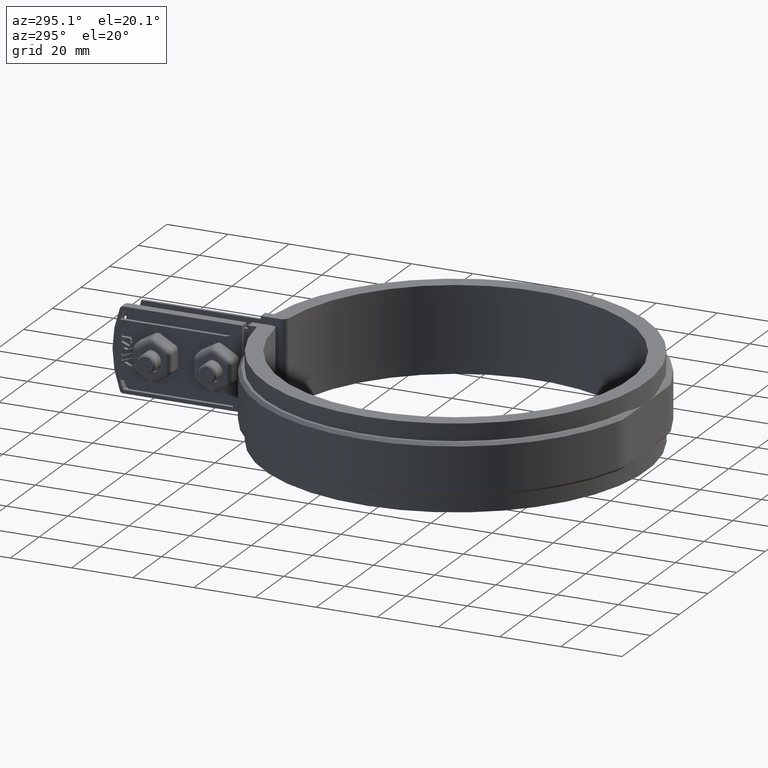
[diagram: clean part render]
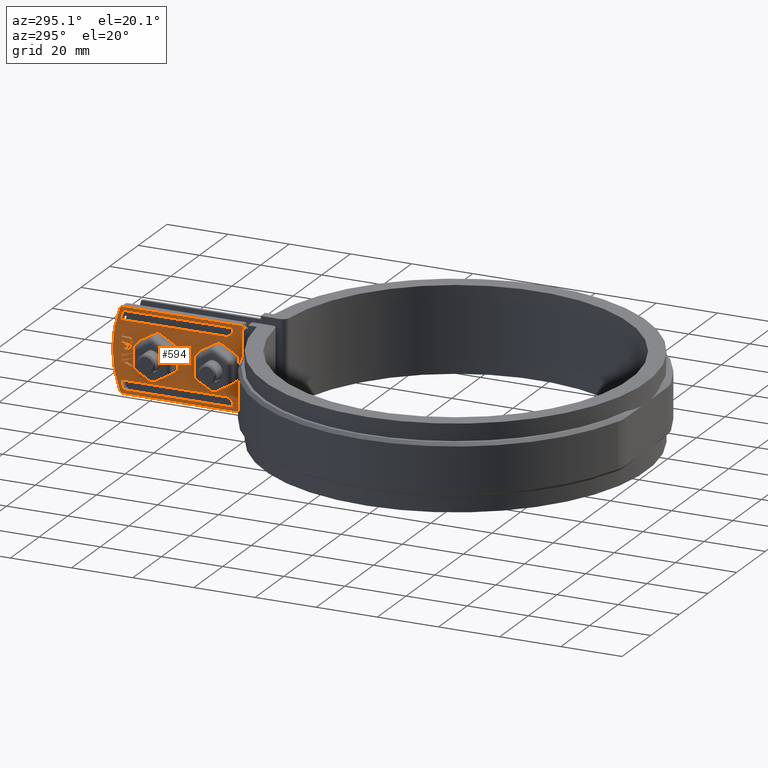
[diagram: same view with one face highlighted and labeled with its STEP entity id]
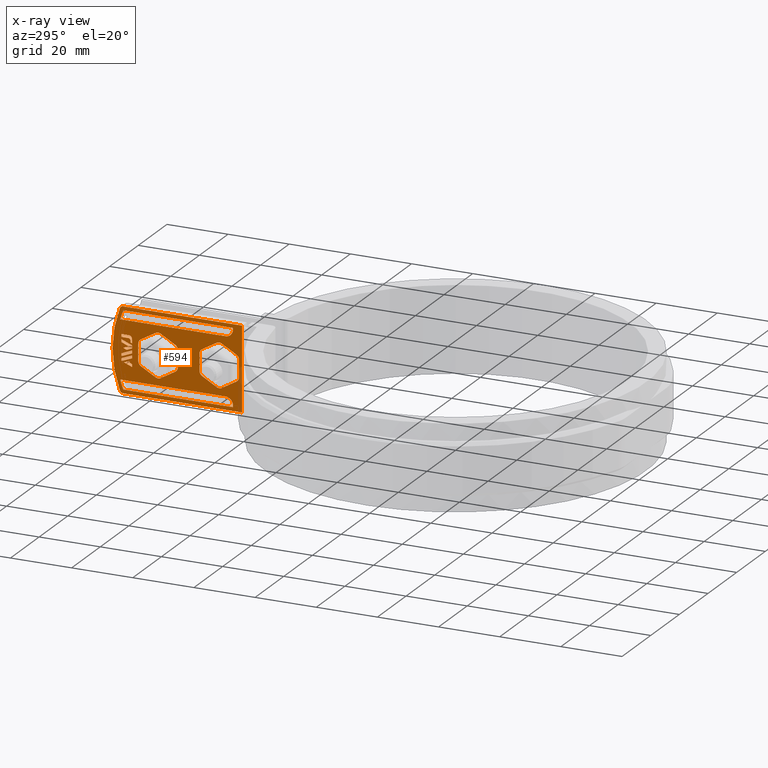
[diagram: x-ray of the same camera — body ghosted, the highlighted face saturated]
A machine part, auxiliary view. The second image highlights one B-rep face of the part: STEP entity #594.
The next image is the same camera in x-ray: the body ghosted, the highlighted face saturated — about 3% of this face is hidden behind the body in this view.
In plain terms, the highlighted planar face has unit normal (-1, 0, -0).
Its self-contained STEP definition (entity closure, byte-faithful):
#594 = ADVANCED_FACE( '', ( #1102, #1103, #1104, #1105, #1106, #1107, #1108, #1109, #1110, #1111 ), #1112, .T. );
#1102 = FACE_OUTER_BOUND( '', #2421, .T. );
#1103 = FACE_BOUND( '', #2422, .T. );
#1104 = FACE_BOUND( '', #2423, .T. );
#1105 = FACE_BOUND( '', #2424, .T. );
#1106 = FACE_BOUND( '', #2425, .T. );
#1107 = FACE_BOUND( '', #2426, .T. );
#1108 = FACE_BOUND( '', #2427, .T. );
#1109 = FACE_BOUND( '', #2428, .T. );
#1110 = FACE_BOUND( '', #2429, .T. );
#1111 = FACE_BOUND( '', #2430, .T. );
#1112 = PLANE( '', #2431 );
#2421 = EDGE_LOOP( '', ( #5282, #5283, #5284, #5285, #5286, #5287 ) );
#2422 = EDGE_LOOP( '', ( #5288, #5289, #5290, #5291, #5292 ) );
#2423 = EDGE_LOOP( '', ( #5293, #5294, #5295, #5296 ) );
#2424 = EDGE_LOOP( '', ( #5297, #5298, #5299, #5300, #5301 ) );
#2425 = EDGE_LOOP( '', ( #5302, #5303, #5304, #5305, #5306, #5307, #5308, #5309, #5310, #5311, #5312, #5313 ) );
#2426 = EDGE_LOOP( '', ( #5314, #5315, #5316, #5317, #5318, #5319, #5320, #5321, #5322, #5323, #5324, #5325 ) );
#2427 = EDGE_LOOP( '', ( #5326, #5327, #5328, #5329, #5330 ) );
#2428 = EDGE_LOOP( '', ( #5331, #5332, #5333, #5334, #5335, #5336, #5337, #5338, #5339, #5340, #5341, #5342, #5343, #5344, #5345, #5346, #5347, #5348, #5349, #5350, #5351, #5352, #5353, #5354, #5355, #5356, #5357, #5358, #5359, #5360, #5361, #5362, #5363, #5364, #5365, #5366, #5367, #5368, #5369, #5370 ) );
#2429 = EDGE_LOOP( '', ( #5371, #5372, #5373, #5374, #5375, #5376, #5377 ) );
#2430 = EDGE_LOOP( '', ( #5378, #5379, #5380, #5381 ) );
#2431 = AXIS2_PLACEMENT_3D( '', #5382, #5383, #5384 );
#5282 = ORIENTED_EDGE( '', *, *, #7413, .T. );
#5283 = ORIENTED_EDGE( '', *, *, #7414, .T. );
#5284 = ORIENTED_EDGE( '', *, *, #7415, .T. );
#5285 = ORIENTED_EDGE( '', *, *, #7416, .T. );
#5286 = ORIENTED_EDGE( '', *, *, #7417, .T. );
#5287 = ORIENTED_EDGE( '', *, *, #7418, .T. );
#5288 = ORIENTED_EDGE( '', *, *, #7419, .T. );
#5289 = ORIENTED_EDGE( '', *, *, #7420, .T. );
#5290 = ORIENTED_EDGE( '', *, *, #7421, .T. );
#5291 = ORIENTED_EDGE( '', *, *, #7422, .T. );
#5292 = ORIENTED_EDGE( '', *, *, #7423, .T. );
#5293 = ORIENTED_EDGE( '', *, *, #7424, .T. );
#5294 = ORIENTED_EDGE( '', *, *, #7425, .T. );
#5295 = ORIENTED_EDGE( '', *, *, #7426, .T. );
#5296 = ORIENTED_EDGE( '', *, *, #7427, .T. );
#5297 = ORIENTED_EDGE( '', *, *, #7428, .T. );
#5298 = ORIENTED_EDGE( '', *, *, #7429, .F. );
#5299 = ORIENTED_EDGE( '', *, *, #7430, .T. );
#5300 = ORIENTED_EDGE( '', *, *, #7431, .T. );
#5301 = ORIENTED_EDGE( '', *, *, #7432, .T. );
#5302 = ORIENTED_EDGE( '', *, *, #7433, .F. );
#5303 = ORIENTED_EDGE( '', *, *, #7434, .F. );
#5304 = ORIENTED_EDGE( '', *, *, #7435, .F. );
#5305 = ORIENTED_EDGE( '', *, *, #7436, .F. );
#5306 = ORIENTED_EDGE( '', *, *, #7437, .F. );
#5307 = ORIENTED_EDGE( '', *, *, #7438, .F. );
#5308 = ORIENTED_EDGE( '', *, *, #7439, .F. );
#5309 = ORIENTED_EDGE( '', *, *, #7440, .F. );
#5310 = ORIENTED_EDGE( '', *, *, #7441, .F. );
#5311 = ORIENTED_EDGE( '', *, *, #7442, .F. );
#5312 = ORIENTED_EDGE( '', *, *, #7443, .F. );
#5313 = ORIENTED_EDGE( '', *, *, #7444, .F. );
#5314 = ORIENTED_EDGE( '', *, *, #7445, .F. );
#5315 = ORIENTED_EDGE( '', *, *, #7446, .F. );
#5316 = ORIENTED_EDGE( '', *, *, #7447, .F. );
#5317 = ORIENTED_EDGE( '', *, *, #7448, .F. );
#5318 = ORIENTED_EDGE( '', *, *, #7449, .F. );
#5319 = ORIENTED_EDGE( '', *, *, #7450, .F. );
#5320 = ORIENTED_EDGE( '', *, *, #7451, .F. );
#5321 = ORIENTED_EDGE( '', *, *, #7452, .F. );
#5322 = ORIENTED_EDGE( '', *, *, #7453, .F. );
#5323 = ORIENTED_EDGE( '', *, *, #7454, .F. );
#5324 = ORIENTED_EDGE( '', *, *, #7455, .F. );
#5325 = ORIENTED_EDGE( '', *, *, #7456, .F. );
#5326 = ORIENTED_EDGE( '', *, *, #7457, .T. );
#5327 = ORIENTED_EDGE( '', *, *, #7458, .T. );
#5328 = ORIENTED_EDGE( '', *, *, #7459, .T. );
#5329 = ORIENTED_EDGE( '', *, *, #7460, .T. );
#5330 = ORIENTED_EDGE( '', *, *, #7461, .F. );
#5331 = ORIENTED_EDGE( '', *, *, #7462, .T. );
#5332 = ORIENTED_EDGE( '', *, *, #7463, .T. );
#5333 = ORIENTED_EDGE( '', *, *, #7464, .T. );
#5334 = ORIENTED_EDGE( '', *, *, #7465, .T. );
#5335 = ORIENTED_EDGE( '', *, *, #7466, .T. );
#5336 = ORIENTED_EDGE( '', *, *, #7467, .T. );
#5337 = ORIENTED_EDGE( '', *, *, #7468, .T. );
#5338 = ORIENTED_EDGE( '', *, *, #7469, .T. );
#5339 = ORIENTED_EDGE( '', *, *, #7470, .T. );
#5340 = ORIENTED_EDGE( '', *, *, #7471, .T. );
#5341 = ORIENTED_EDGE( '', *, *, #7472, .T. );
#5342 = ORIENTED_EDGE( '', *, *, #7473, .T. );
#5343 = ORIENTED_EDGE( '', *, *, #7474, .T. );
#5344 = ORIENTED_EDGE( '', *, *, #7475, .T. );
#5345 = ORIENTED_EDGE( '', *, *, #7476, .T. );
#5346 = ORIENTED_EDGE( '', *, *, #7477, .T. );
#5347 = ORIENTED_EDGE( '', *, *, #7478, .T. );
#5348 = ORIENTED_EDGE( '', *, *, #7479, .T. );
#5349 = ORIENTED_EDGE( '', *, *, #7480, .T. );
#5350 = ORIENTED_EDGE( '', *, *, #7481, .T. );
#5351 = ORIENTED_EDGE( '', *, *, #7482, .T. );
#5352 = ORIENTED_EDGE( '', *, *, #7483, .T. );
#5353 = ORIENTED_EDGE( '', *, *, #7484, .T. );
#5354 = ORIENTED_EDGE( '', *, *, #7485, .T. );
#5355 = ORIENTED_EDGE( '', *, *, #7486, .T. );
#5356 = ORIENTED_EDGE( '', *, *, #7487, .T. );
#5357 = ORIENTED_EDGE( '', *, *, #7488, .T. );
#5358 = ORIENTED_EDGE( '', *, *, #7489, .T. );
#5359 = ORIENTED_EDGE( '', *, *, #7490, .T. );
#5360 = ORIENTED_EDGE( '', *, *, #7491, .T. );
#5361 = ORIENTED_EDGE( '', *, *, #7492, .T. );
#5362 = ORIENTED_EDGE( '', *, *, #7493, .T. );
#5363 = ORIENTED_EDGE( '', *, *, #7494, .T. );
#5364 = ORIENTED_EDGE( '', *, *, #7495, .T. );
#5365 = ORIENTED_EDGE( '', *, *, #7496, .T. );
#5366 = ORIENTED_EDGE( '', *, *, #7497, .T. );
#5367 = ORIENTED_EDGE( '', *, *, #7498, .T. );
#5368 = ORIENTED_EDGE( '', *, *, #7499, .T. );
#5369 = ORIENTED_EDGE( '', *, *, #7500, .T. );
#5370 = ORIENTED_EDGE( '', *, *, #7501, .T. );
#5371 = ORIENTED_EDGE( '', *, *, #7502, .T. );
#5372 = ORIENTED_EDGE( '', *, *, #7503, .T. );
#5373 = ORIENTED_EDGE( '', *, *, #7504, .T. );
#5374 = ORIENTED_EDGE( '', *, *, #7505, .T. );
#5375 = ORIENTED_EDGE( '', *, *, #7506, .T. );
#5376 = ORIENTED_EDGE( '', *, *, #7507, .T. );
#5377 = ORIENTED_EDGE( '', *, *, #7508, .T. );
#5378 = ORIENTED_EDGE( '', *, *, #7509, .T. );
#5379 = ORIENTED_EDGE( '', *, *, #7510, .T. );
#5380 = ORIENTED_EDGE( '', *, *, #7511, .T. );
#5381 = ORIENTED_EDGE( '', *, *, #7512, .T. );
#5382 = CARTESIAN_POINT( '', ( -6.20000000000002, 72.9013037155077, 1.23338839141951E-012 ) );
#5383 = DIRECTION( '', ( -1.00000000000000, 7.00331983426594E-017, -2.99848040556711E-018 ) );
#5384 = DIRECTION( '', ( -2.99848040556711E-018, 0.000000000000000, 1.00000000000000 ) );
#7413 = EDGE_CURVE( '', #8613, #8614, #8615, .T. );
#7414 = EDGE_CURVE( '', #8614, #8616, #8617, .T. );
#7415 = EDGE_CURVE( '', #8616, #8618, #8619, .T. );
#7416 = EDGE_CURVE( '', #8618, #8620, #8621, .T. );
#7417 = EDGE_CURVE( '', #8620, #8622, #8623, .T. );
#7418 = EDGE_CURVE( '', #8622, #8613, #8624, .T. );
#7419 = EDGE_CURVE( '', #8625, #8626, #8627, .T. );
#7420 = EDGE_CURVE( '', #8626, #8628, #8629, .T. );
#7421 = EDGE_CURVE( '', #8628, #8630, #8631, .T. );
#7422 = EDGE_CURVE( '', #8630, #8632, #8633, .T. );
#7423 = EDGE_CURVE( '', #8632, #8625, #8634, .T. );
#7424 = EDGE_CURVE( '', #8635, #8636, #8637, .T. );
#7425 = EDGE_CURVE( '', #8636, #8638, #8639, .T. );
#7426 = EDGE_CURVE( '', #8638, #8640, #8641, .T. );
#7427 = EDGE_CURVE( '', #8640, #8635, #8642, .T. );
#7428 = EDGE_CURVE( '', #8643, #8644, #8645, .T. );
#7429 = EDGE_CURVE( '', #8646, #8644, #8647, .T. );
#7430 = EDGE_CURVE( '', #8646, #8648, #8649, .T. );
#7431 = EDGE_CURVE( '', #8648, #8650, #8651, .T. );
#7432 = EDGE_CURVE( '', #8650, #8643, #8652, .T. );
#7433 = EDGE_CURVE( '', #8653, #8654, #8655, .T. );
#7434 = EDGE_CURVE( '', #8656, #8653, #8657, .T. );
#7435 = EDGE_CURVE( '', #8658, #8656, #8659, .T. );
#7436 = EDGE_CURVE( '', #8660, #8658, #8661, .T. );
#7437 = EDGE_CURVE( '', #8662, #8660, #8663, .T. );
#7438 = EDGE_CURVE( '', #8664, #8662, #8665, .T. );
#7439 = EDGE_CURVE( '', #8666, #8664, #8667, .T. );
#7440 = EDGE_CURVE( '', #8668, #8666, #8669, .T. );
#7441 = EDGE_CURVE( '', #8670, #8668, #8671, .T. );
#7442 = EDGE_CURVE( '', #8672, #8670, #8673, .T. );
#7443 = EDGE_CURVE( '', #8674, #8672, #8675, .T. );
#7444 = EDGE_CURVE( '', #8654, #8674, #8676, .T. );
#7445 = EDGE_CURVE( '', #8677, #8678, #8679, .T. );
#7446 = EDGE_CURVE( '', #8680, #8677, #8681, .T. );
#7447 = EDGE_CURVE( '', #8682, #8680, #8683, .T. );
#7448 = EDGE_CURVE( '', #8684, #8682, #8685, .T. );
#7449 = EDGE_CURVE( '', #8686, #8684, #8687, .T. );
#7450 = EDGE_CURVE( '', #8688, #8686, #8689, .T. );
#7451 = EDGE_CURVE( '', #8690, #8688, #8691, .T. );
#7452 = EDGE_CURVE( '', #8692, #8690, #8693, .T. );
#7453 = EDGE_CURVE( '', #8694, #8692, #8695, .T. );
#7454 = EDGE_CURVE( '', #8696, #8694, #8697, .T. );
#7455 = EDGE_CURVE( '', #8698, #8696, #8699, .T. );
#7456 = EDGE_CURVE( '', #8678, #8698, #8700, .T. );
#7457 = EDGE_CURVE( '', #8701, #8702, #8703, .T. );
#7458 = EDGE_CURVE( '', #8702, #8704, #8705, .T. );
#7459 = EDGE_CURVE( '', #8704, #8706, #8707, .T. );
#7460 = EDGE_CURVE( '', #8706, #8708, #8709, .T. );
#7461 = EDGE_CURVE( '', #8701, #8708, #8710, .T. );
#7462 = EDGE_CURVE( '', #8711, #8712, #8713, .T. );
#7463 = EDGE_CURVE( '', #8712, #8714, #8715, .T. );
#7464 = EDGE_CURVE( '', #8714, #8716, #8717, .T. );
#7465 = EDGE_CURVE( '', #8716, #8718, #8719, .T. );
#7466 = EDGE_CURVE( '', #8718, #8720, #8721, .T. );
#7467 = EDGE_CURVE( '', #8720, #8722, #8723, .T. );
#7468 = EDGE_CURVE( '', #8722, #8724, #8725, .T. );
#7469 = EDGE_CURVE( '', #8724, #8726, #8727, .T. );
#7470 = EDGE_CURVE( '', #8726, #8728, #8729, .T. );
#7471 = EDGE_CURVE( '', #8728, #8730, #8731, .T. );
#7472 = EDGE_CURVE( '', #8730, #8732, #8733, .T. );
#7473 = EDGE_CURVE( '', #8732, #8734, #8735, .T. );
#7474 = EDGE_CURVE( '', #8734, #8736, #8737, .T. );
#7475 = EDGE_CURVE( '', #8736, #8738, #8739, .T. );
#7476 = EDGE_CURVE( '', #8738, #8740, #8741, .T. );
#7477 = EDGE_CURVE( '', #8740, #8742, #8743, .T. );
#7478 = EDGE_CURVE( '', #8742, #8744, #8745, .T. );
#7479 = EDGE_CURVE( '', #8744, #8746, #8747, .T. );
#7480 = EDGE_CURVE( '', #8746, #8748, #8749, .T. );
#7481 = EDGE_CURVE( '', #8748, #8750, #8751, .T. );
#7482 = EDGE_CURVE( '', #8750, #8752, #8753, .T. );
#7483 = EDGE_CURVE( '', #8752, #8754, #8755, .T. );
#7484 = EDGE_CURVE( '', #8754, #8756, #8757, .T. );
#7485 = EDGE_CURVE( '', #8756, #8758, #8759, .T. );
#7486 = EDGE_CURVE( '', #8758, #8760, #8761, .T. );
#7487 = EDGE_CURVE( '', #8760, #8762, #8763, .T. );
#7488 = EDGE_CURVE( '', #8762, #8764, #8765, .T. );
#7489 = EDGE_CURVE( '', #8764, #8766, #8767, .T. );
#7490 = EDGE_CURVE( '', #8766, #8768, #8769, .T. );
#7491 = EDGE_CURVE( '', #8768, #8770, #8771, .T. );
#7492 = EDGE_CURVE( '', #8770, #8772, #8773, .T. );
#7493 = EDGE_CURVE( '', #8772, #8774, #8775, .T. );
#7494 = EDGE_CURVE( '', #8774, #8776, #8777, .T. );
#7495 = EDGE_CURVE( '', #8776, #8778, #8779, .T. );
#7496 = EDGE_CURVE( '', #8778, #8780, #8781, .T. );
#7497 = EDGE_CURVE( '', #8780, #8782, #8783, .T. );
#7498 = EDGE_CURVE( '', #8782, #8784, #8785, .T. );
#7499 = EDGE_CURVE( '', #8784, #8786, #8787, .T. );
#7500 = EDGE_CURVE( '', #8786, #8788, #8789, .T. );
#7501 = EDGE_CURVE( '', #8788, #8711, #8790, .T. );
#7502 = EDGE_CURVE( '', #8791, #8792, #8793, .T. );
#7503 = EDGE_CURVE( '', #8792, #8794, #8795, .T. );
#7504 = EDGE_CURVE( '', #8794, #8796, #8797, .T. );
#7505 = EDGE_CURVE( '', #8796, #8798, #8799, .T. );
#7506 = EDGE_CURVE( '', #8798, #8800, #8801, .T. );
#7507 = EDGE_CURVE( '', #8800, #8802, #8803, .T. );
#7508 = EDGE_CURVE( '', #8802, #8791, #8804, .T. );
#7509 = EDGE_CURVE( '', #8805, #8806, #8807, .T. );
#7510 = EDGE_CURVE( '', #8806, #8808, #8809, .T. );
#7511 = EDGE_CURVE( '', #8808, #8810, #8811, .T. );
#7512 = EDGE_CURVE( '', #8810, #8805, #8812, .T. );
#8613 = VERTEX_POINT( '', #12464 );
#8614 = VERTEX_POINT( '', #12465 );
#8615 = CIRCLE( '', #12466, 36.4000000000000 );
#8616 = VERTEX_POINT( '', #12467 );
#8617 = CIRCLE( '', #12468, 1.00000000000000 );
#8618 = VERTEX_POINT( '', #12469 );
#8619 = LINE( '', #12470, #12471 );
#8620 = VERTEX_POINT( '', #12472 );
#8621 = LINE( '', #12473, #12474 );
#8622 = VERTEX_POINT( '', #12475 );
#8623 = LINE( '', #12476, #12477 );
#8624 = CIRCLE( '', #12478, 1.00000000000000 );
#8625 = VERTEX_POINT( '', #12479 );
#8626 = VERTEX_POINT( '', #12480 );
#8627 = LINE( '', #12481, #12482 );
#8628 = VERTEX_POINT( '', #12483 );
#8629 = LINE( '', #12484, #12485 );
#8630 = VERTEX_POINT( '', #12486 );
#8631 = LINE( '', #12487, #12488 );
#8632 = VERTEX_POINT( '', #12489 );
#8633 = LINE( '', #12490, #12491 );
#8634 = LINE( '', #12492, #12493 );
#8635 = VERTEX_POINT( '', #12494 );
#8636 = VERTEX_POINT( '', #12495 );
#8637 = LINE( '', #12496, #12497 );
#8638 = VERTEX_POINT( '', #12498 );
#8639 = LINE( '', #12499, #12500 );
#8640 = VERTEX_POINT( '', #12501 );
#8641 = LINE( '', #12502, #12503 );
#8642 = LINE( '', #12504, #12505 );
#8643 = VERTEX_POINT( '', #12506 );
#8644 = VERTEX_POINT( '', #12507 );
#8645 = CIRCLE( '', #12508, 35.2000000000000 );
#8646 = VERTEX_POINT( '', #12509 );
#8647 = LINE( '', #12510, #12511 );
#8648 = VERTEX_POINT( '', #12512 );
#8649 = LINE( '', #12513, #12514 );
#8650 = VERTEX_POINT( '', #12515 );
#8651 = CIRCLE( '', #12516, 2.50000000000000 );
#8652 = LINE( '', #12517, #12518 );
#8653 = VERTEX_POINT( '', #12519 );
#8654 = VERTEX_POINT( '', #12520 );
#8655 = LINE( '', #12521, #12522 );
#8656 = VERTEX_POINT( '', #12523 );
#8657 = CIRCLE( '', #12524, 1.77252045227181 );
#8658 = VERTEX_POINT( '', #12525 );
#8659 = LINE( '', #12526, #12527 );
#8660 = VERTEX_POINT( '', #12528 );
#8661 = CIRCLE( '', #12529, 1.77252045227181 );
#8662 = VERTEX_POINT( '', #12530 );
#8663 = LINE( '', #12531, #12532 );
#8664 = VERTEX_POINT( '', #12533 );
#8665 = CIRCLE( '', #12534, 1.77252045227182 );
#8666 = VERTEX_POINT( '', #12535 );
#8667 = LINE( '', #12536, #12537 );
#8668 = VERTEX_POINT( '', #12538 );
#8669 = CIRCLE( '', #12539, 1.77252045227182 );
#8670 = VERTEX_POINT( '', #12540 );
#8671 = LINE( '', #12541, #12542 );
#8672 = VERTEX_POINT( '', #12543 );
#8673 = CIRCLE( '', #12544, 1.77252045227181 );
#8674 = VERTEX_POINT( '', #12545 );
#8675 = LINE( '', #12546, #12547 );
#8676 = CIRCLE( '', #12548, 1.77252045227182 );
#8677 = VERTEX_POINT( '', #12549 );
#8678 = VERTEX_POINT( '', #12550 );
#8679 = LINE( '', #12551, #12552 );
#8680 = VERTEX_POINT( '', #12553 );
#8681 = CIRCLE( '', #12554, 1.77252045227181 );
#8682 = VERTEX_POINT( '', #12555 );
#8683 = LINE( '', #12556, #12557 );
#8684 = VERTEX_POINT( '', #12558 );
#8685 = CIRCLE( '', #12559, 1.77252045227181 );
#8686 = VERTEX_POINT( '', #12560 );
#8687 = LINE( '', #12561, #12562 );
#8688 = VERTEX_POINT( '', #12563 );
#8689 = CIRCLE( '', #12564, 1.77252045227181 );
#8690 = VERTEX_POINT( '', #12565 );
#8691 = LINE( '', #12566, #12567 );
#8692 = VERTEX_POINT( '', #12568 );
#8693 = CIRCLE( '', #12569, 1.77252045227182 );
#8694 = VERTEX_POINT( '', #12570 );
#8695 = LINE( '', #12571, #12572 );
#8696 = VERTEX_POINT( '', #12573 );
#8697 = CIRCLE( '', #12574, 1.77252045227181 );
#8698 = VERTEX_POINT( '', #12575 );
#8699 = LINE( '', #12576, #12577 );
#8700 = CIRCLE( '', #12578, 1.77252045227182 );
#8701 = VERTEX_POINT( '', #12579 );
#8702 = VERTEX_POINT( '', #12580 );
#8703 = CIRCLE( '', #12581, 35.2000000000000 );
#8704 = VERTEX_POINT( '', #12582 );
#8705 = LINE( '', #12583, #12584 );
#8706 = VERTEX_POINT( '', #12585 );
#8707 = CIRCLE( '', #12586, 2.50000000000000 );
#8708 = VERTEX_POINT( '', #12587 );
#8709 = LINE( '', #12588, #12589 );
#8710 = LINE( '', #12590, #12591 );
#8711 = VERTEX_POINT( '', #12592 );
#8712 = VERTEX_POINT( '', #12593 );
#8713 = LINE( '', #12594, #12595 );
#8714 = VERTEX_POINT( '', #12596 );
#8715 = LINE( '', #12597, #12598 );
#8716 = VERTEX_POINT( '', #12599 );
#8717 = LINE( '', #12600, #12601 );
#8718 = VERTEX_POINT( '', #12602 );
#8719 = LINE( '', #12603, #12604 );
#8720 = VERTEX_POINT( '', #12605 );
#8721 = LINE( '', #12606, #12607 );
#8722 = VERTEX_POINT( '', #12608 );
#8723 = LINE( '', #12609, #12610 );
#8724 = VERTEX_POINT( '', #12611 );
#8725 = LINE( '', #12612, #12613 );
#8726 = VERTEX_POINT( '', #12614 );
#8727 = LINE( '', #12615, #12616 );
#8728 = VERTEX_POINT( '', #12617 );
#8729 = LINE( '', #12618, #12619 );
#8730 = VERTEX_POINT( '', #12620 );
#8731 = LINE( '', #12621, #12622 );
#8732 = VERTEX_POINT( '', #12623 );
#8733 = LINE( '', #12624, #12625 );
#8734 = VERTEX_POINT( '', #12626 );
#8735 = LINE( '', #12627, #12628 );
#8736 = VERTEX_POINT( '', #12629 );
#8737 = LINE( '', #12630, #12631 );
#8738 = VERTEX_POINT( '', #12632 );
#8739 = LINE( '', #12633, #12634 );
#8740 = VERTEX_POINT( '', #12635 );
#8741 = LINE( '', #12636, #12637 );
#8742 = VERTEX_POINT( '', #12638 );
#8743 = LINE( '', #12639, #12640 );
#8744 = VERTEX_POINT( '', #12641 );
#8745 = LINE( '', #12642, #12643 );
#8746 = VERTEX_POINT( '', #12644 );
#8747 = LINE( '', #12645, #12646 );
#8748 = VERTEX_POINT( '', #12647 );
#8749 = LINE( '', #12648, #12649 );
#8750 = VERTEX_POINT( '', #12650 );
#8751 = LINE( '', #12651, #12652 );
#8752 = VERTEX_POINT( '', #12653 );
#8753 = LINE( '', #12654, #12655 );
#8754 = VERTEX_POINT( '', #12656 );
#8755 = LINE( '', #12657, #12658 );
#8756 = VERTEX_POINT( '', #12659 );
#8757 = LINE( '', #12660, #12661 );
#8758 = VERTEX_POINT( '', #12662 );
#8759 = LINE( '', #12663, #12664 );
#8760 = VERTEX_POINT( '', #12665 );
#8761 = LINE( '', #12666, #12667 );
#8762 = VERTEX_POINT( '', #12668 );
#8763 = LINE( '', #12669, #12670 );
#8764 = VERTEX_POINT( '', #12671 );
#8765 = LINE( '', #12672, #12673 );
#8766 = VERTEX_POINT( '', #12674 );
#8767 = LINE( '', #12675, #12676 );
#8768 = VERTEX_POINT( '', #12677 );
#8769 = LINE( '', #12678, #12679 );
#8770 = VERTEX_POINT( '', #12680 );
#8771 = LINE( '', #12681, #12682 );
#8772 = VERTEX_POINT( '', #12683 );
#8773 = LINE( '', #12684, #12685 );
#8774 = VERTEX_POINT( '', #12686 );
#8775 = LINE( '', #12687, #12688 );
#8776 = VERTEX_POINT( '', #12689 );
#8777 = LINE( '', #12690, #12691 );
#8778 = VERTEX_POINT( '', #12692 );
#8779 = LINE( '', #12693, #12694 );
#8780 = VERTEX_POINT( '', #12695 );
#8781 = LINE( '', #12696, #12697 );
#8782 = VERTEX_POINT( '', #12698 );
#8783 = LINE( '', #12699, #12700 );
#8784 = VERTEX_POINT( '', #12701 );
#8785 = LINE( '', #12702, #12703 );
#8786 = VERTEX_POINT( '', #12704 );
#8787 = LINE( '', #12705, #12706 );
#8788 = VERTEX_POINT( '', #12707 );
#8789 = LINE( '', #12708, #12709 );
#8790 = CIRCLE( '', #12710, 1.16712912069193 );
#8791 = VERTEX_POINT( '', #12711 );
#8792 = VERTEX_POINT( '', #12712 );
#8793 = LINE( '', #12713, #12714 );
#8794 = VERTEX_POINT( '', #12715 );
#8795 = LINE( '', #12716, #12717 );
#8796 = VERTEX_POINT( '', #12718 );
#8797 = LINE( '', #12719, #12720 );
#8798 = VERTEX_POINT( '', #12721 );
#8799 = LINE( '', #12722, #12723 );
#8800 = VERTEX_POINT( '', #12724 );
#8801 = LINE( '', #12725, #12726 );
#8802 = VERTEX_POINT( '', #12727 );
#8803 = LINE( '', #12728, #12729 );
#8804 = LINE( '', #12730, #12731 );
#8805 = VERTEX_POINT( '', #12732 );
#8806 = VERTEX_POINT( '', #12733 );
#8807 = LINE( '', #12734, #12735 );
#8808 = VERTEX_POINT( '', #12736 );
#8809 = LINE( '', #12737, #12738 );
#8810 = VERTEX_POINT( '', #12739 );
#8811 = LINE( '', #12740, #12741 );
#8812 = LINE( '', #12742, #12743 );
#12464 = CARTESIAN_POINT( '', ( -6.20000000000002, 106.878190918308, 13.0587570621481 ) );
#12465 = CARTESIAN_POINT( '', ( -6.20000000000002, 106.878190918308, -13.0587570621457 ) );
#12466 = AXIS2_PLACEMENT_3D( '', #14324, #14325, #14326 );
#12467 = CARTESIAN_POINT( '', ( -6.20000000000002, 105.944759951198, -13.6999999999988 ) );
#12468 = AXIS2_PLACEMENT_3D( '', #14327, #14328, #14329 );
#12469 = CARTESIAN_POINT( '', ( -6.20000000000002, 66.9013037155077, -13.6999999999988 ) );
#12470 = CARTESIAN_POINT( '', ( -6.20000000000002, 69.9013037155077, -13.6999999999988 ) );
#12471 = VECTOR( '', #14330, 1000.00000000000 );
#12472 = CARTESIAN_POINT( '', ( -6.20000000000002, 66.9013037155077, 13.7000000000012 ) );
#12473 = CARTESIAN_POINT( '', ( -6.20000000000002, 66.9013037155077, -13.6999999999988 ) );
#12474 = VECTOR( '', #14331, 1000.00000000000 );
#12475 = CARTESIAN_POINT( '', ( -6.20000000000002, 105.944759951198, 13.7000000000012 ) );
#12476 = CARTESIAN_POINT( '', ( -6.20000000000002, 66.9013037155077, 13.7000000000012 ) );
#12477 = VECTOR( '', #14332, 1000.00000000000 );
#12478 = AXIS2_PLACEMENT_3D( '', #14333, #14334, #14335 );
#12479 = CARTESIAN_POINT( '', ( -6.20000000000002, 103.713001732282, -3.14273099999877 ) );
#12480 = CARTESIAN_POINT( '', ( -6.20000000000002, 103.713001732282, -3.70490135199877 ) );
#12481 = CARTESIAN_POINT( '', ( -6.20000000000002, 103.713001732282, 1.23512311489549E-012 ) );
#12482 = VECTOR( '', #14336, 1000.00000000000 );
#12483 = CARTESIAN_POINT( '', ( -6.20000000000002, 102.904995828282, -4.03159444399876 ) );
#12484 = CARTESIAN_POINT( '', ( -6.20000000000002, 78.5180156001367, -13.8917426630094 ) );
#12485 = VECTOR( '', #14337, 1000.00000000000 );
#12486 = CARTESIAN_POINT( '', ( -6.20000000000002, 102.904995828282, -4.93535191999876 ) );
#12487 = CARTESIAN_POINT( '', ( -6.20000000000002, 102.904995828282, 1.23512311489549E-012 ) );
#12488 = VECTOR( '', #14338, 1000.00000000000 );
#12489 = CARTESIAN_POINT( '', ( -6.20000000000002, 105.528032942282, -3.87571280799875 ) );
#12490 = CARTESIAN_POINT( '', ( -6.20000000000002, 78.8248239862776, -14.6631181690086 ) );
#12491 = VECTOR( '', #14339, 1000.00000000000 );
#12492 = CARTESIAN_POINT( '', ( -6.20000000000002, 76.1304823729824, 7.99618760249421 ) );
#12493 = VECTOR( '', #14340, 1000.00000000000 );
#12494 = CARTESIAN_POINT( '', ( -6.20000000000002, 106.403434652282, -2.04496288599876 ) );
#12495 = CARTESIAN_POINT( '', ( -6.20000000000002, 106.403434652282, -1.14094322399877 ) );
#12496 = CARTESIAN_POINT( '', ( -6.20000000000002, 106.403434652282, 1.23512311489549E-012 ) );
#12497 = VECTOR( '', #14341, 1000.00000000000 );
#12498 = CARTESIAN_POINT( '', ( -6.20000000000002, 102.904995828282, 0.272669550001235 ) );
#12499 = CARTESIAN_POINT( '', ( -6.20000000000002, 77.2072153947158, 10.6563613942400 ) );
#12500 = VECTOR( '', #14342, 1000.00000000000 );
#12501 = CARTESIAN_POINT( '', ( -6.20000000000002, 102.904995828282, -0.631350889998760 ) );
#12502 = CARTESIAN_POINT( '', ( -6.20000000000002, 102.904995828282, 1.23512311489549E-012 ) );
#12503 = VECTOR( '', #14343, 1000.00000000000 );
#12504 = CARTESIAN_POINT( '', ( -6.20000000000002, 76.8931945675411, 9.87922143943513 ) );
#12505 = VECTOR( '', #14344, 1000.00000000000 );
#12506 = CARTESIAN_POINT( '', ( -6.20000000000002, 106.795108459148, 9.50000000000123 ) );
#12507 = CARTESIAN_POINT( '', ( -6.20000000000003, 105.807078284723, 12.5000000000012 ) );
#12508 = AXIS2_PLACEMENT_3D( '', #14345, #14346, #14347 );
#12509 = CARTESIAN_POINT( '', ( -6.20000000000002, 69.9013037155077, 12.5000000000012 ) );
#12510 = CARTESIAN_POINT( '', ( -6.20000000000002, 66.9013037155077, 12.5000000000012 ) );
#12511 = VECTOR( '', #14348, 1000.00000000000 );
#12512 = CARTESIAN_POINT( '', ( -6.20000000000002, 69.9013037155077, 12.0000000000012 ) );
#12513 = CARTESIAN_POINT( '', ( -6.20000000000002, 69.9013037155077, 13.7000000000012 ) );
#12514 = VECTOR( '', #14349, 1000.00000000000 );
#12515 = CARTESIAN_POINT( '', ( -6.20000000000002, 72.4013037155077, 9.50000000000124 ) );
#12516 = AXIS2_PLACEMENT_3D( '', #14350, #14351, #14352 );
#12517 = CARTESIAN_POINT( '', ( -6.20000000000002, 72.4013037155077, 9.50000000000123 ) );
#12518 = VECTOR( '', #14353, 1000.00000000000 );
#12519 = CARTESIAN_POINT( '', ( -6.20000000000002, 100.873824167779, 2.71354626519249 ) );
#12520 = CARTESIAN_POINT( '', ( -6.20000000000002, 100.873824167779, -2.71354626519000 ) );
#12521 = CARTESIAN_POINT( '', ( -6.20000000000002, 100.873824167779, -2.71354626519000 ) );
#12522 = VECTOR( '', #14354, 1000.00000000000 );
#12523 = CARTESIAN_POINT( '', ( -6.20000000000002, 99.9875639416436, 4.24859400558736 ) );
#12524 = AXIS2_PLACEMENT_3D( '', #14355, #14356, #14357 );
#12525 = CARTESIAN_POINT( '', ( -6.20000000000002, 95.2875639416436, 6.96214027077859 ) );
#12526 = CARTESIAN_POINT( '', ( -6.20000000000002, 102.337563941644, 2.89182087299175 ) );
#12527 = VECTOR( '', #14358, 1000.00000000000 );
#12528 = CARTESIAN_POINT( '', ( -6.20000000000002, 93.5150434893717, 6.96214027077860 ) );
#12529 = AXIS2_PLACEMENT_3D( '', #14359, #14360, #14361 );
#12530 = CARTESIAN_POINT( '', ( -6.20000000000002, 88.8150434893717, 4.24859400558736 ) );
#12531 = CARTESIAN_POINT( '', ( -6.20000000000002, 93.5150434893717, 6.96214027077860 ) );
#12532 = VECTOR( '', #14362, 1000.00000000000 );
#12533 = CARTESIAN_POINT( '', ( -6.20000000000002, 87.9287832632358, 2.71354626519248 ) );
#12534 = AXIS2_PLACEMENT_3D( '', #14363, #14364, #14365 );
#12535 = CARTESIAN_POINT( '', ( -6.20000000000002, 87.9287832632358, -2.71354626518999 ) );
#12536 = CARTESIAN_POINT( '', ( -6.20000000000002, 87.9287832632358, -2.71354626519000 ) );
#12537 = VECTOR( '', #14366, 1000.00000000000 );
#12538 = CARTESIAN_POINT( '', ( -6.20000000000002, 88.8150434893717, -4.24859400558486 ) );
#12539 = AXIS2_PLACEMENT_3D( '', #14367, #14368, #14369 );
#12540 = CARTESIAN_POINT( '', ( -6.20000000000002, 93.5150434893718, -6.96214027077612 ) );
#12541 = CARTESIAN_POINT( '', ( -6.20000000000002, 95.8650434893717, -8.31891340337173 ) );
#12542 = VECTOR( '', #14370, 1000.00000000000 );
#12543 = CARTESIAN_POINT( '', ( -6.20000000000002, 95.2875639416436, -6.96214027077611 ) );
#12544 = AXIS2_PLACEMENT_3D( '', #14371, #14372, #14373 );
#12545 = CARTESIAN_POINT( '', ( -6.20000000000002, 99.9875639416436, -4.24859400558488 ) );
#12546 = CARTESIAN_POINT( '', ( -6.20000000000002, 99.9875639416436, -4.24859400558488 ) );
#12547 = VECTOR( '', #14374, 1000.00000000000 );
#12548 = AXIS2_PLACEMENT_3D( '', #14375, #14376, #14377 );
#12549 = CARTESIAN_POINT( '', ( -6.20000000000002, 80.8738241677795, 2.71354626519248 ) );
#12550 = CARTESIAN_POINT( '', ( -6.20000000000002, 80.8738241677795, -2.71354626519000 ) );
#12551 = CARTESIAN_POINT( '', ( -6.20000000000002, 80.8738241677795, -2.71354626519000 ) );
#12552 = VECTOR( '', #14378, 1000.00000000000 );
#12553 = CARTESIAN_POINT( '', ( -6.20000000000002, 79.9875639416436, 4.24859400558735 ) );
#12554 = AXIS2_PLACEMENT_3D( '', #14379, #14380, #14381 );
#12555 = CARTESIAN_POINT( '', ( -6.20000000000002, 75.2875639416436, 6.96214027077859 ) );
#12556 = CARTESIAN_POINT( '', ( -6.20000000000002, 82.3375639416436, 2.89182087299174 ) );
#12557 = VECTOR( '', #14382, 1000.00000000000 );
#12558 = CARTESIAN_POINT( '', ( -6.20000000000002, 73.5150434893717, 6.96214027077859 ) );
#12559 = AXIS2_PLACEMENT_3D( '', #14383, #14384, #14385 );
#12560 = CARTESIAN_POINT( '', ( -6.20000000000002, 68.8150434893717, 4.24859400558735 ) );
#12561 = CARTESIAN_POINT( '', ( -6.20000000000002, 73.5150434893717, 6.96214027077859 ) );
#12562 = VECTOR( '', #14386, 1000.00000000000 );
#12563 = CARTESIAN_POINT( '', ( -6.20000000000002, 67.9287832632358, 2.71354626519248 ) );
#12564 = AXIS2_PLACEMENT_3D( '', #14387, #14388, #14389 );
#12565 = CARTESIAN_POINT( '', ( -6.20000000000002, 67.9287832632358, -2.71354626519000 ) );
#12566 = CARTESIAN_POINT( '', ( -6.20000000000002, 67.9287832632358, -2.71354626519000 ) );
#12567 = VECTOR( '', #14390, 1000.00000000000 );
#12568 = CARTESIAN_POINT( '', ( -6.20000000000002, 68.8150434893717, -4.24859400558487 ) );
#12569 = AXIS2_PLACEMENT_3D( '', #14391, #14392, #14393 );
#12570 = CARTESIAN_POINT( '', ( -6.20000000000002, 73.5150434893718, -6.96214027077612 ) );
#12571 = CARTESIAN_POINT( '', ( -6.20000000000002, 75.8650434893718, -8.31891340337173 ) );
#12572 = VECTOR( '', #14394, 1000.00000000000 );
#12573 = CARTESIAN_POINT( '', ( -6.20000000000002, 75.2875639416436, -6.96214027077611 ) );
#12574 = AXIS2_PLACEMENT_3D( '', #14395, #14396, #14397 );
#12575 = CARTESIAN_POINT( '', ( -6.20000000000002, 79.9875639416436, -4.24859400558488 ) );
#12576 = CARTESIAN_POINT( '', ( -6.20000000000002, 79.9875639416436, -4.24859400558488 ) );
#12577 = VECTOR( '', #14398, 1000.00000000000 );
#12578 = AXIS2_PLACEMENT_3D( '', #14399, #14400, #14401 );
#12579 = CARTESIAN_POINT( '', ( -6.20000000000002, 105.807078284723, -12.4999999999988 ) );
#12580 = CARTESIAN_POINT( '', ( -6.20000000000003, 106.795108459148, -9.49999999999876 ) );
#12581 = AXIS2_PLACEMENT_3D( '', #14402, #14403, #14404 );
#12582 = CARTESIAN_POINT( '', ( -6.20000000000002, 72.4013037155077, -9.49999999999877 ) );
#12583 = CARTESIAN_POINT( '', ( -6.20000000000002, 107.625214785547, -9.49999999999876 ) );
#12584 = VECTOR( '', #14405, 1000.00000000000 );
#12585 = CARTESIAN_POINT( '', ( -6.20000000000002, 69.9013037155077, -11.9999999999988 ) );
#12586 = AXIS2_PLACEMENT_3D( '', #14406, #14407, #14408 );
#12587 = CARTESIAN_POINT( '', ( -6.20000000000002, 69.9013037155077, -12.4999999999988 ) );
#12588 = CARTESIAN_POINT( '', ( -6.20000000000002, 69.9013037155077, -11.9999999999988 ) );
#12589 = VECTOR( '', #14409, 1000.00000000000 );
#12590 = CARTESIAN_POINT( '', ( -6.20000000000002, 105.593045792063, -12.4999999999988 ) );
#12591 = VECTOR( '', #14410, 1000.00000000000 );
#12592 = CARTESIAN_POINT( '', ( -6.20000000000002, 102.904995835421, 3.75702028825260 ) );
#12593 = CARTESIAN_POINT( '', ( -6.20000000000002, 102.904995828282, 2.52926555200124 ) );
#12594 = CARTESIAN_POINT( '', ( -6.20000000000002, 102.904995813576, -1.74450280610028E-007 ) );
#12595 = VECTOR( '', #14411, 1000.00000000000 );
#12596 = CARTESIAN_POINT( '', ( -6.20000000000002, 103.413735474282, 2.73480926200124 ) );
#12597 = CARTESIAN_POINT( '', ( -6.20000000000002, 76.2332226450783, -8.24680675818411 ) );
#12598 = VECTOR( '', #14412, 1000.00000000000 );
#12599 = CARTESIAN_POINT( '', ( -6.20000000000002, 103.413735474282, 3.23173575600124 ) );
#12600 = CARTESIAN_POINT( '', ( -6.20000000000002, 103.413735474282, 1.23512311489549E-012 ) );
#12601 = VECTOR( '', #14413, 1000.00000000000 );
#12602 = CARTESIAN_POINT( '', ( -6.20000000000002, 103.414432562282, 3.26452923400124 ) );
#12603 = CARTESIAN_POINT( '', ( -6.20000000000002, 103.331288781503, -0.646847444167015 ) );
#12604 = VECTOR( '', #14414, 1000.00000000000 );
#12605 = CARTESIAN_POINT( '', ( -6.20000000000002, 103.416516046282, 3.29730559600123 ) );
#12606 = CARTESIAN_POINT( '', ( -6.20000000000002, 103.084953626093, -1.91867394100736 ) );
#12607 = VECTOR( '', #14415, 1000.00000000000 );
#12608 = CARTESIAN_POINT( '', ( -6.20000000000002, 103.419975034282, 3.32997148200123 ) );
#12609 = CARTESIAN_POINT( '', ( -6.20000000000002, 102.732872941603, -3.15886242834412 ) );
#12610 = VECTOR( '', #14416, 1000.00000000000 );
#12611 = CARTESIAN_POINT( '', ( -6.20000000000002, 103.424797856282, 3.36243431000124 ) );
#12612 = CARTESIAN_POINT( '', ( -6.20000000000002, 102.276899324446, -4.36416903560575 ) );
#12613 = VECTOR( '', #14417, 1000.00000000000 );
#12614 = CARTESIAN_POINT( '', ( -6.20000000000002, 103.430972842282, 3.39459994200125 ) );
#12615 = CARTESIAN_POINT( '', ( -6.20000000000002, 101.717303166108, -5.53194145799352 ) );
#12616 = VECTOR( '', #14418, 1000.00000000000 );
#12617 = CARTESIAN_POINT( '', ( -6.20000000000002, 103.439874718282, 3.43162807400123 ) );
#12618 = CARTESIAN_POINT( '', ( -6.20000000000002, 100.991381835555, -6.75309227738024 ) );
#12619 = VECTOR( '', #14419, 1000.00000000000 );
#12620 = CARTESIAN_POINT( '', ( -6.20000000000002, 103.450617342282, 3.46824775600124 ) );
#12621 = CARTESIAN_POINT( '', ( -6.20000000000002, 100.093109701270, -7.97689470886078 ) );
#12622 = VECTOR( '', #14420, 1000.00000000000 );
#12623 = CARTESIAN_POINT( '', ( -6.20000000000002, 103.463143920282, 3.50433139600124 ) );
#12624 = CARTESIAN_POINT( '', ( -6.20000000000002, 99.0903999426417, -9.09164808868383 ) );
#12625 = VECTOR( '', #14421, 1000.00000000000 );
#12626 = CARTESIAN_POINT( '', ( -6.20000000000002, 103.477396880282, 3.53975295800124 ) );
#12627 = CARTESIAN_POINT( '', ( -6.20000000000002, 97.9908153212358, -10.0955402626219 ) );
#12628 = VECTOR( '', #14422, 1000.00000000000 );
#12629 = CARTESIAN_POINT( '', ( -6.20000000000002, 103.493318650282, 3.57438407200124 ) );
#12630 = CARTESIAN_POINT( '', ( -6.20000000000002, 96.7987134881992, -10.9869137330231 ) );
#12631 = VECTOR( '', #14423, 1000.00000000000 );
#12632 = CARTESIAN_POINT( '', ( -6.20000000000002, 103.510851658282, 3.60809870200124 ) );
#12633 = CARTESIAN_POINT( '', ( -6.20000000000002, 95.5179675279392, -11.7616046077482 ) );
#12634 = VECTOR( '', #14424, 1000.00000000000 );
#12635 = CARTESIAN_POINT( '', ( -6.20000000000002, 103.529937554282, 3.64076847800124 ) );
#12636 = CARTESIAN_POINT( '', ( -6.20000000000002, 94.1506376071881, -12.4139993101247 ) );
#12637 = VECTOR( '', #14425, 1000.00000000000 );
#12638 = CARTESIAN_POINT( '', ( -6.20000000000002, 103.550706264282, 3.67257389600124 ) );
#12639 = CARTESIAN_POINT( '', ( -6.20000000000002, 92.7072804761778, -12.9331608724369 ) );
#12640 = VECTOR( '', #14426, 1000.00000000000 );
#12641 = CARTESIAN_POINT( '', ( -6.20000000000002, 103.573056648282, 3.70337491600124 ) );
#12642 = CARTESIAN_POINT( '', ( -6.20000000000002, 91.2331241709951, -13.3022616328656 ) );
#12643 = VECTOR( '', #14427, 1000.00000000000 );
#12644 = CARTESIAN_POINT( '', ( -6.20000000000002, 103.596900014282, 3.73307662200124 ) );
#12645 = CARTESIAN_POINT( '', ( -6.20000000000002, 89.7453857607114, -13.5217691919014 ) );
#12646 = VECTOR( '', #14428, 1000.00000000000 );
#12647 = CARTESIAN_POINT( '', ( -6.20000000000002, 103.622147670282, 3.76158643200124 ) );
#12648 = CARTESIAN_POINT( '', ( -6.20000000000002, 88.2521207673394, -13.5943434292811 ) );
#12649 = VECTOR( '', #14429, 1000.00000000000 );
#12650 = CARTESIAN_POINT( '', ( -6.20000000000002, 103.648711702282, 3.78880943000124 ) );
#12651 = CARTESIAN_POINT( '', ( -6.20000000000002, 86.7578136178048, -13.5210961134010 ) );
#12652 = VECTOR( '', #14430, 1000.00000000000 );
#12653 = CARTESIAN_POINT( '', ( -6.20000000000002, 103.676501862282, 3.81465147800124 ) );
#12654 = CARTESIAN_POINT( '', ( -6.20000000000002, 85.2702120958662, -13.3013429475664 ) );
#12655 = VECTOR( '', #14431, 1000.00000000000 );
#12656 = CARTESIAN_POINT( '', ( -6.20000000000002, 103.705431014282, 3.83901921600124 ) );
#12657 = CARTESIAN_POINT( '', ( -6.20000000000002, 83.7945726994681, -12.9323876600249 ) );
#12658 = VECTOR( '', #14432, 1000.00000000000 );
#12659 = CARTESIAN_POINT( '', ( -6.20000000000002, 103.735088374282, 3.86160222200124 ) );
#12660 = CARTESIAN_POINT( '', ( -6.20000000000002, 82.3566384141722, -12.4173134913335 ) );
#12661 = VECTOR( '', #14433, 1000.00000000000 );
#12662 = CARTESIAN_POINT( '', ( -6.20000000000002, 103.765888616282, 3.88278638400124 ) );
#12663 = CARTESIAN_POINT( '', ( -6.20000000000002, 81.0002294752121, -11.7752532924792 ) );
#12664 = VECTOR( '', #14434, 1000.00000000000 );
#12665 = CARTESIAN_POINT( '', ( -6.20000000000002, 103.797725932282, 3.90250868400124 ) );
#12666 = CARTESIAN_POINT( '', ( -6.20000000000002, 79.7225353108332, -11.0113782778676 ) );
#12667 = VECTOR( '', #14435, 1000.00000000000 );
#12668 = CARTESIAN_POINT( '', ( -6.20000000000002, 103.830492958282, 3.92070843800125 ) );
#12669 = CARTESIAN_POINT( '', ( -6.20000000000002, 78.5291314923018, -10.1323995415326 ) );
#12670 = VECTOR( '', #14436, 1000.00000000000 );
#12671 = CARTESIAN_POINT( '', ( -6.20000000000002, 103.864083886282, 3.93732574000124 ) );
#12672 = CARTESIAN_POINT( '', ( -6.20000000000002, 77.4240432579001, -9.14245996921539 ) );
#12673 = VECTOR( '', #14437, 1000.00000000000 );
#12674 = CARTESIAN_POINT( '', ( -6.20000000000002, 103.898392908282, 3.95229757200124 ) );
#12675 = CARTESIAN_POINT( '', ( -6.20000000000002, 76.4109927330682, -8.04270297159301 ) );
#12676 = VECTOR( '', #14438, 1000.00000000000 );
#12677 = CARTESIAN_POINT( '', ( -6.20000000000002, 103.933313438282, 3.96556325000124 ) );
#12678 = CARTESIAN_POINT( '', ( -6.20000000000002, 75.4983196611802, -6.83637679440989 ) );
#12679 = VECTOR( '', #14439, 1000.00000000000 );
#12680 = CARTESIAN_POINT( '', ( -6.20000000000002, 103.968898380282, 3.97712044000123 ) );
#12681 = CARTESIAN_POINT( '', ( -6.20000000000002, 74.6972147326260, -5.52966502941734 ) );
#12682 = VECTOR( '', #14440, 1000.00000000000 );
#12683 = CARTESIAN_POINT( '', ( -6.20000000000002, 104.005140732282, 3.98697458800123 ) );
#12684 = CARTESIAN_POINT( '', ( -6.20000000000002, 74.0330222459834, -4.16232243989231 ) );
#12685 = VECTOR( '', #14441, 1000.00000000000 );
#12686 = CARTESIAN_POINT( '', ( -6.20000000000002, 104.041912902282, 3.99509690800124 ) );
#12687 = CARTESIAN_POINT( '', ( -6.20000000000002, 73.5085491317225, -2.74918147484127 ) );
#12688 = VECTOR( '', #14442, 1000.00000000000 );
#12689 = CARTESIAN_POINT( '', ( -6.20000000000002, 104.079086520282, 4.00146094800124 ) );
#12690 = CARTESIAN_POINT( '', ( -6.20000000000002, 73.1235288588606, -1.29806107268202 ) );
#12691 = VECTOR( '', #14443, 1000.00000000000 );
#12692 = CARTESIAN_POINT( '', ( -6.20000000000002, 104.116533216282, 4.00604025600124 ) );
#12693 = CARTESIAN_POINT( '', ( -6.20000000000002, 72.8785593790202, 0.185988855559770 ) );
#12694 = VECTOR( '', #14444, 1000.00000000000 );
#12695 = CARTESIAN_POINT( '', ( -6.20000000000002, 104.154125398282, 4.00880760200124 ) );
#12696 = CARTESIAN_POINT( '', ( -6.20000000000002, 72.7762373574531, 1.69892644218233 ) );
#12697 = VECTOR( '', #14445, 1000.00000000000 );
#12698 = CARTESIAN_POINT( '', ( -6.20000000000002, 104.191735474282, 4.00973575600123 ) );
#12699 = CARTESIAN_POINT( '', ( -6.20000000000002, 72.8214552517645, 3.23556951742296 ) );
#12700 = VECTOR( '', #14446, 1000.00000000000 );
#12701 = CARTESIAN_POINT( '', ( -6.20000000000002, 106.403434652282, 4.00973575600123 ) );
#12702 = CARTESIAN_POINT( '', ( -6.20000000000002, 72.9013037155077, 4.00973575600123 ) );
#12703 = VECTOR( '', #14447, 1000.00000000000 );
#12704 = CARTESIAN_POINT( '', ( -6.20000000000002, 106.403434652282, 4.92402035000124 ) );
#12705 = CARTESIAN_POINT( '', ( -6.20000000000002, 106.403434652282, 1.23512311489549E-012 ) );
#12706 = VECTOR( '', #14448, 1000.00000000000 );
#12707 = CARTESIAN_POINT( '', ( -6.20000000000002, 104.071995828282, 4.92402035000123 ) );
#12708 = CARTESIAN_POINT( '', ( -6.20000000000002, 72.9013037155077, 4.92402035000123 ) );
#12709 = VECTOR( '', #14449, 1000.00000000000 );
#12710 = AXIS2_PLACEMENT_3D( '', #14450, #14451, #14452 );
#12711 = CARTESIAN_POINT( '', ( -6.20000000000002, 103.960117094282, 1.40086757800123 ) );
#12712 = CARTESIAN_POINT( '', ( -6.20000000000002, 106.403434652282, 2.38814802200124 ) );
#12713 = CARTESIAN_POINT( '', ( -6.20000000000002, 76.7740678987663, -9.58430077740712 ) );
#12714 = VECTOR( '', #14453, 1000.00000000000 );
#12715 = CARTESIAN_POINT( '', ( -6.20000000000002, 106.403434652282, 3.29218013200124 ) );
#12716 = CARTESIAN_POINT( '', ( -6.20000000000002, 106.403434652282, 1.23512311489549E-012 ) );
#12717 = VECTOR( '', #14454, 1000.00000000000 );
#12718 = CARTESIAN_POINT( '', ( -6.20000000000002, 102.904995828282, 1.87878986600123 ) );
#12719 = CARTESIAN_POINT( '', ( -6.20000000000002, 76.4588273329322, -8.80562081109797 ) );
#12720 = VECTOR( '', #14455, 1000.00000000000 );
#12721 = CARTESIAN_POINT( '', ( -6.20000000000002, 102.904995828282, 0.923144458001235 ) );
#12722 = CARTESIAN_POINT( '', ( -6.20000000000002, 102.904995828282, 1.23512311489549E-012 ) );
#12723 = VECTOR( '', #14456, 1000.00000000000 );
#12724 = CARTESIAN_POINT( '', ( -6.20000000000002, 104.687352594282, 0.202900066001238 ) );
#12725 = CARTESIAN_POINT( '', ( -6.20000000000002, 77.4336618462134, 11.2160251019341 ) );
#12726 = VECTOR( '', #14457, 1000.00000000000 );
#12727 = CARTESIAN_POINT( '', ( -6.20000000000002, 105.806327432282, 0.654915732001238 ) );
#12728 = CARTESIAN_POINT( '', ( -6.20000000000002, 77.2900301245505, -10.8643898695858 ) );
#12729 = VECTOR( '', #14458, 1000.00000000000 );
#12730 = CARTESIAN_POINT( '', ( -6.20000000000002, 77.7467145664233, 11.9922588204424 ) );
#12731 = VECTOR( '', #14459, 1000.00000000000 );
#12732 = CARTESIAN_POINT( '', ( -6.20000000000002, 106.403434652282, -2.69546191199876 ) );
#12733 = CARTESIAN_POINT( '', ( -6.20000000000002, 102.904995828282, -1.28184913799877 ) );
#12734 = CARTESIAN_POINT( '', ( -6.20000000000002, 76.6672439922781, 9.32002873448893 ) );
#12735 = VECTOR( '', #14460, 1000.00000000000 );
#12736 = CARTESIAN_POINT( '', ( -6.20000000000002, 102.904995828282, -2.18580500399876 ) );
#12737 = CARTESIAN_POINT( '', ( -6.20000000000002, 102.904995828282, 1.23512311489549E-012 ) );
#12738 = VECTOR( '', #14461, 1000.00000000000 );
#12739 = CARTESIAN_POINT( '', ( -6.20000000000002, 106.403434652282, -3.59921860999876 ) );
#12740 = CARTESIAN_POINT( '', ( -6.20000000000002, 76.3523063729214, 8.54181792730326 ) );
#12741 = VECTOR( '', #14462, 1000.00000000000 );
#12742 = CARTESIAN_POINT( '', ( -6.20000000000002, 106.403434652282, 1.23512311489549E-012 ) );
#12743 = VECTOR( '', #14463, 1000.00000000000 );
#14324 = CARTESIAN_POINT( '', ( -6.20000000000002, 72.9013037155077, 1.23512311489549E-012 ) );
#14325 = DIRECTION( '', ( -1.00000000000000, 8.63850640449354E-017, 6.32865840457794E-019 ) );
#14326 = DIRECTION( '', ( 6.32865840457775E-019, -2.22044604925031E-016, 1.00000000000000 ) );
#14327 = CARTESIAN_POINT( '', ( -6.20000000000002, 105.944759951198, -12.6999999999988 ) );
#14328 = DIRECTION( '', ( -1.00000000000000, 7.00331983426594E-017, -2.99848040556711E-018 ) );
#14329 = DIRECTION( '', ( -7.00331983426594E-017, -1.00000000000000, 0.000000000000000 ) );
#14330 = DIRECTION( '', ( -5.56970201441962E-017, -1.00000000000000, -1.27307474615306E-016 ) );
#14331 = DIRECTION( '', ( 4.24382911911540E-034, 1.16698518397363E-016, 1.00000000000000 ) );
#14332 = DIRECTION( '', ( 5.56970201441962E-017, 1.00000000000000, 1.25318295324441E-016 ) );
#14333 = CARTESIAN_POINT( '', ( -6.20000000000002, 105.944759951198, 12.7000000000012 ) );
#14334 = DIRECTION( '', ( -1.00000000000000, 7.00331983426594E-017, -2.99848040556711E-018 ) );
#14335 = DIRECTION( '', ( -7.00331983426594E-017, -1.00000000000000, 0.000000000000000 ) );
#14336 = DIRECTION( '', ( 2.99848040556711E-018, 6.12303185182995E-017, -1.00000000000000 ) );
#14337 = DIRECTION( '', ( -6.38030667817910E-017, -0.927089170438195, -0.374840859640753 ) );
#14338 = DIRECTION( '', ( 2.99848040556711E-018, 6.12303185182995E-017, -1.00000000000000 ) );
#14339 = DIRECTION( '', ( 6.38116998903885E-017, 0.927200633736575, 0.374565060835223 ) );
#14340 = DIRECTION( '', ( -6.60606600455966E-017, -0.927243888575590, 0.374457969736549 ) );
#14341 = DIRECTION( '', ( -2.99848040556711E-018, -6.12303185182995E-017, 1.00000000000000 ) );
#14342 = DIRECTION( '', ( -6.60560267289571E-017, -0.927169886208874, 0.374641164459304 ) );
#14343 = DIRECTION( '', ( 2.99848040556711E-018, 6.12303185182995E-017, -1.00000000000000 ) );
#14344 = DIRECTION( '', ( 6.60560312133162E-017, 0.927169957829709, -0.374640987210496 ) );
#14345 = CARTESIAN_POINT( '', ( -6.20000000000002, 72.9013037155077, 1.23338839141951E-012 ) );
#14346 = DIRECTION( '', ( 1.00000000000000, -7.00331983426594E-017, 2.99848040556711E-018 ) );
#14347 = DIRECTION( '', ( -7.00331983426594E-017, -1.00000000000000, -3.69591244847365E-050 ) );
#14348 = DIRECTION( '', ( 5.56970201441962E-017, 1.00000000000000, 5.55111512312578E-017 ) );
#14349 = DIRECTION( '', ( -4.24382911911540E-034, -1.16698518397363E-016, -1.00000000000000 ) );
#14350 = CARTESIAN_POINT( '', ( -6.20000000000002, 72.4013037155077, 12.0000000000012 ) );
#14351 = DIRECTION( '', ( 1.00000000000000, -4.59398167318704E-017, 2.99848040556711E-018 ) );
#14352 = DIRECTION( '', ( -4.59398167318704E-017, -1.00000000000000, 1.26047130616614E-015 ) );
#14353 = DIRECTION( '', ( 5.56970201441962E-017, 1.00000000000000, 1.27307474615306E-016 ) );
#14354 = DIRECTION( '', ( 1.97308976443281E-032, 5.55111512312578E-016, -1.00000000000000 ) );
#14355 = CARTESIAN_POINT( '', ( -6.20000000000002, 99.1013037155077, 2.71354626519248 ) );
#14356 = DIRECTION( '', ( -1.00000000000000, 3.55440253114725E-017, 0.000000000000000 ) );
#14357 = DIRECTION( '', ( -3.55440253114725E-017, -1.00000000000000, 0.000000000000000 ) );
#14358 = DIRECTION( '', ( 3.07820288724923E-017, 0.866025403784439, -0.499999999999999 ) );
#14359 = CARTESIAN_POINT( '', ( -6.20000000000002, 94.4013037155077, 5.42709253038372 ) );
#14360 = DIRECTION( '', ( -1.00000000000000, 3.55440253114725E-017, 0.000000000000000 ) );
#14361 = DIRECTION( '', ( -3.55440253114725E-017, -1.00000000000000, 0.000000000000000 ) );
#14362 = DIRECTION( '', ( 3.07820288724923E-017, 0.866025403784439, 0.500000000000000 ) );
#14363 = CARTESIAN_POINT( '', ( -6.20000000000002, 89.7013037155076, 2.71354626519248 ) );
#14364 = DIRECTION( '', ( -1.00000000000000, 3.55440253114725E-017, 0.000000000000000 ) );
#14365 = DIRECTION( '', ( -3.55440253114725E-017, -1.00000000000000, 0.000000000000000 ) );
#14366 = DIRECTION( '', ( -1.97308976443281E-033, -5.55111512312578E-017, 1.00000000000000 ) );
#14367 = CARTESIAN_POINT( '', ( -6.20000000000002, 89.7013037155077, -2.71354626519000 ) );
#14368 = DIRECTION( '', ( -1.00000000000000, 3.55440253114725E-017, 0.000000000000000 ) );
#14369 = DIRECTION( '', ( -3.55440253114725E-017, -1.00000000000000, 0.000000000000000 ) );
#14370 = DIRECTION( '', ( -3.07820288724923E-017, -0.866025403784439, 0.499999999999999 ) );
#14371 = CARTESIAN_POINT( '', ( -6.20000000000002, 94.4013037155077, -5.42709253038125 ) );
#14372 = DIRECTION( '', ( -1.00000000000000, 3.55440253114725E-017, 0.000000000000000 ) );
#14373 = DIRECTION( '', ( -3.55440253114725E-017, -1.00000000000000, 0.000000000000000 ) );
#14374 = DIRECTION( '', ( -3.07820288724923E-017, -0.866025403784439, -0.500000000000000 ) );
#14375 = CARTESIAN_POINT( '', ( -6.20000000000002, 99.1013037155077, -2.71354626519000 ) );
#14376 = DIRECTION( '', ( -1.00000000000000, 3.55440253114725E-017, 0.000000000000000 ) );
#14377 = DIRECTION( '', ( -3.55440253114725E-017, -1.00000000000000, 0.000000000000000 ) );
#14378 = DIRECTION( '', ( -4.06060806403090E-017, 5.55111512312578E-016, -1.00000000000000 ) );
#14379 = CARTESIAN_POINT( '', ( -6.20000000000002, 79.1013037155077, 2.71354626519248 ) );
#14380 = DIRECTION( '', ( -1.00000000000000, 3.47877694537817E-017, 4.06060806403090E-017 ) );
#14381 = DIRECTION( '', ( 4.06060806403090E-017, -2.14396182046329E-049, 1.00000000000000 ) );
#14382 = DIRECTION( '', ( 9.82405176781676E-018, 0.866025403784439, -0.500000000000000 ) );
#14383 = CARTESIAN_POINT( '', ( -6.20000000000002, 74.4013037155077, 5.42709253038372 ) );
#14384 = DIRECTION( '', ( -1.00000000000000, 3.47877694537817E-017, 4.06060806403090E-017 ) );
#14385 = DIRECTION( '', ( 4.06060806403090E-017, -2.14396182046329E-049, 1.00000000000000 ) );
#14386 = DIRECTION( '', ( 5.04301324081257E-017, 0.866025403784439, 0.500000000000000 ) );
#14387 = CARTESIAN_POINT( '', ( -6.20000000000002, 69.7013037155076, 2.71354626519248 ) );
#14388 = DIRECTION( '', ( -1.00000000000000, 3.47877694537817E-017, 4.06060806403090E-017 ) );
#14389 = DIRECTION( '', ( 4.06060806403090E-017, -2.14396182046329E-049, 1.00000000000000 ) );
#14390 = DIRECTION( '', ( 4.06060806403090E-017, -5.55111512312578E-017, 1.00000000000000 ) );
#14391 = CARTESIAN_POINT( '', ( -6.20000000000002, 69.7013037155077, -2.71354626519000 ) );
#14392 = DIRECTION( '', ( -1.00000000000000, 3.47877694537817E-017, 4.06060806403090E-017 ) );
#14393 = DIRECTION( '', ( 4.06060806403090E-017, 2.14396182046329E-049, 1.00000000000000 ) );
#14394 = DIRECTION( '', ( -9.82405176781677E-018, -0.866025403784439, 0.499999999999999 ) );
#14395 = CARTESIAN_POINT( '', ( -6.20000000000002, 74.4013037155077, -5.42709253038125 ) );
#14396 = DIRECTION( '', ( -1.00000000000000, 3.47877694537817E-017, 4.06060806403090E-017 ) );
#14397 = DIRECTION( '', ( 4.06060806403090E-017, -2.14396182046329E-049, 1.00000000000000 ) );
#14398 = DIRECTION( '', ( -5.04301324081257E-017, -0.866025403784439, -0.500000000000000 ) );
#14399 = CARTESIAN_POINT( '', ( -6.20000000000002, 79.1013037155077, -2.71354626519000 ) );
#14400 = DIRECTION( '', ( -1.00000000000000, 3.47877694537817E-017, 4.06060806403090E-017 ) );
#14401 = DIRECTION( '', ( 4.06060806403090E-017, 2.14396182046329E-049, 1.00000000000000 ) );
#14402 = CARTESIAN_POINT( '', ( -6.20000000000002, 72.9013037155077, 1.23685783837146E-012 ) );
#14403 = DIRECTION( '', ( 1.00000000000000, -7.00331983426594E-017, 2.99848040556711E-018 ) );
#14404 = DIRECTION( '', ( -7.00331983426594E-017, -1.00000000000000, -3.69591244847365E-050 ) );
#14405 = DIRECTION( '', ( -5.56970201441962E-017, -1.00000000000000, -1.27307474615306E-016 ) );
#14406 = CARTESIAN_POINT( '', ( -6.20000000000002, 72.4013037155077, -11.9999999999988 ) );
#14407 = DIRECTION( '', ( 1.00000000000000, -4.59398167318704E-017, 2.99848040556711E-018 ) );
#14408 = DIRECTION( '', ( -2.99848040556712E-018, -1.27307474615306E-016, 1.00000000000000 ) );
#14409 = DIRECTION( '', ( -4.24382911911540E-034, -1.16698518397363E-016, -1.00000000000000 ) );
#14410 = DIRECTION( '', ( -5.56970201441962E-017, -1.00000000000000, -5.55111512312578E-017 ) );
#14411 = DIRECTION( '', ( 2.99847999837064E-018, -5.81433489840874E-009, -1.00000000000000 ) );
#14412 = DIRECTION( '', ( 6.38104222763634E-017, 0.927184138855904, 0.374605889774888 ) );
#14413 = DIRECTION( '', ( -2.99848040556711E-018, -6.12303185182995E-017, 1.00000000000000 ) );
#14414 = DIRECTION( '', ( -1.50945004499275E-018, 0.0212521087754753, 0.999774148431832 ) );
#14415 = DIRECTION( '', ( 1.45036908871190E-018, 0.0634386246205992, 0.997985741835146 ) );
#14416 = DIRECTION( '', ( 4.39277054228050E-018, 0.105301209845800, 0.994440372875624 ) );
#14417 = DIRECTION( '', ( 7.32556133016668E-018, 0.146951582049110, 0.989143686495174 ) );
#14418 = DIRECTION( '', ( 1.02587887435547E-017, 0.188531980048710, 0.982067050918069 ) );
#14419 = DIRECTION( '', ( 1.34547373982447E-017, 0.233748445159388, 0.972297107053995 ) );
#14420 = DIRECTION( '', ( 1.68367007706923E-017, 0.281494091011572, 0.959562961313935 ) );
#14421 = DIRECTION( '', ( 2.01350310730953E-017, 0.327954127641522, 0.944693648842252 ) );
#14422 = DIRECTION( '', ( 2.33612450898640E-017, 0.373294026527601, 0.927713085904694 ) );
#14423 = DIRECTION( '', ( 2.65299653236004E-017, 0.417720622777671, 0.908575523171428 ) );
#14424 = DIRECTION( '', ( 2.96517822434144E-017, 0.461381744248749, 0.887201716676643 ) );
#14425 = DIRECTION( '', ( 3.27380483023933E-017, 0.504433451066250, 0.863450573828863 ) );
#14426 = DIRECTION( '', ( 3.57799463299880E-017, 0.546748756929005, 0.837296719685792 ) );
#14427 = DIRECTION( '', ( 3.87040435531090E-017, 0.587305875154600, 0.809365065349926 ) );
#14428 = DIRECTION( '', ( 4.15030002079679E-017, 0.626006932628245, 0.779817491661592 ) );
#14429 = DIRECTION( '', ( 4.41856908708797E-017, 0.662978001517701, 0.748638877900150 ) );
#14430 = DIRECTION( '', ( 4.67645176248341E-017, 0.698391327561306, 0.715716112426677 ) );
#14431 = DIRECTION( '', ( 4.92440194135511E-017, 0.732308462561328, 0.680973065297787 ) );
#14432 = DIRECTION( '', ( 5.16316644355849E-017, 0.764828516763481, 0.644233917102611 ) );
#14433 = DIRECTION( '', ( 5.39019264669501E-017, 0.795600812668422, 0.605821216929010 ) );
#14434 = DIRECTION( '', ( 5.60032072713421E-017, 0.823929566911572, 0.566692216965179 ) );
#14435 = DIRECTION( '', ( 5.79564545408394E-017, 0.850103956920452, 0.526614909044731 ) );
#14436 = DIRECTION( '', ( 5.97673837380557E-017, 0.874204268025664, 0.485558336109795 ) );
#14437 = DIRECTION( '', ( 6.14426595786609E-017, 0.896320693535636, 0.443406376070301 ) );
#14438 = DIRECTION( '', ( 6.29884897324562E-017, 0.916533283451419, 0.399958423246418 ) );
#14439 = DIRECTION( '', ( 6.44036262082380E-017, 0.934820228524431, 0.355121303699919 ) );
#14440 = DIRECTION( '', ( 6.56820971487036E-017, 0.951096243369007, 0.308894700261049 ) );
#14441 = DIRECTION( '', ( 6.67930241338469E-017, 0.964967172372722, 0.262370646687074 ) );
#14442 = DIRECTION( '', ( 6.77381283682187E-017, 0.976463342006513, 0.215683429399365 ) );
#14443 = DIRECTION( '', ( 6.85229585249500E-017, 0.985660117487907, 0.168742800716726 ) );
#14444 = DIRECTION( '', ( 6.91513737766548E-017, 0.992605568765912, 0.121384450630635 ) );
#14445 = DIRECTION( '', ( 6.96240683670940E-017, 0.997301383971130, 0.0734162756428572 ) );
#14446 = DIRECTION( '', ( 6.99379072873903E-017, 0.999695628945866, 0.0246708221697243 ) );
#14447 = DIRECTION( '', ( 7.00331983426594E-017, 1.00000000000000, 6.12303185182995E-017 ) );
#14448 = DIRECTION( '', ( -2.99848040556711E-018, -6.12303185182995E-017, 1.00000000000000 ) );
#14449 = DIRECTION( '', ( -7.00331983426594E-017, -1.00000000000000, -6.12303176911189E-017 ) );
#14450 = CARTESIAN_POINT( '', ( -6.20000000000002, 104.072124948978, 3.75689123645168 ) );
#14451 = DIRECTION( '', ( 1.00000000000000, -7.00331983426594E-017, 2.99848040556711E-018 ) );
#14452 = DIRECTION( '', ( -7.00331983426594E-017, -1.00000000000000, 0.000000000000000 ) );
#14453 = DIRECTION( '', ( 6.38092152611945E-017, 0.927168555271227, 0.374644458275131 ) );
#14454 = DIRECTION( '', ( -2.99848040556711E-018, -6.12303185182995E-017, 1.00000000000000 ) );
#14455 = DIRECTION( '', ( -6.38109048188958E-017, -0.927190368837278, -0.374590469627021 ) );
#14456 = DIRECTION( '', ( 2.99848040556711E-018, 6.12303185182995E-017, -1.00000000000000 ) );
#14457 = DIRECTION( '', ( 6.60554813146059E-017, 0.927161175292898, -0.374662721697119 ) );
#14458 = DIRECTION( '', ( 6.38121726620192E-017, 0.927206737494495, 0.374549951201191 ) );
#14459 = DIRECTION( '', ( -6.60565250547768E-017, -0.927177845125406, 0.374621466961798 ) );
#14460 = DIRECTION( '', ( -6.60560267289572E-017, -0.927169886208875, 0.374641164459301 ) );
#14461 = DIRECTION( '', ( 2.99848040556711E-018, 6.12303185182995E-017, -1.00000000000000 ) );
#14462 = DIRECTION( '', ( 6.60571746686736E-017, 0.927188220397468, -0.374595787424494 ) );
#14463 = DIRECTION( '', ( -2.99848040556711E-018, -6.12303185182995E-017, 1.00000000000000 ) );